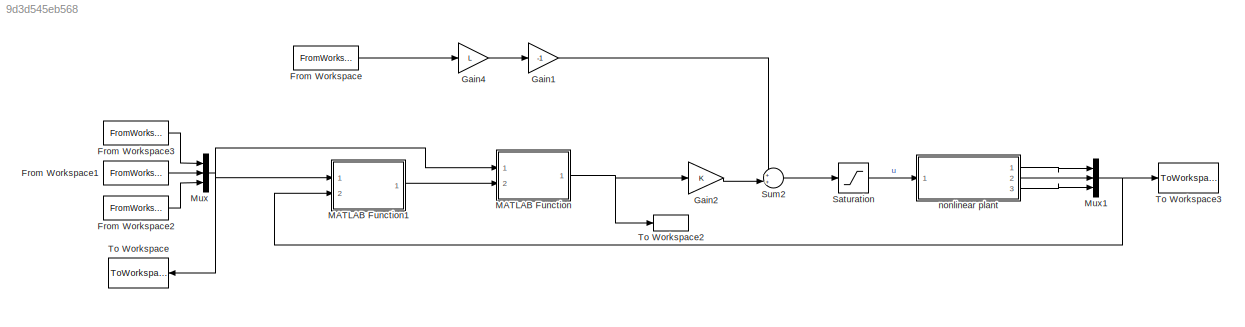
MODEL slx_9d3d545eb568
KIND model
CONFIG AbsTol = auto
CONFIG EnableMultiTasking = off
CONFIG FixedStep = auto
CONFIG MaxStep = auto
CONFIG MinStep = auto
CONFIG RelTol = 1e-9
CONFIG SampleTimeConstraint = Unconstrained
CONFIG Solver = VariableStepAuto
CONFIG SolverName = VariableStepAuto
CONFIG StartTime = 0.0
CONFIG StopTime = sim_time
BLOCK [FromWorkspace] From Workspace
  SampleTime = 0
  VariableName = curv
  ZeroCross = on
BLOCK [FromWorkspace] From Workspace1
  SampleTime = 0
  VariableName = y_r
  ZeroCross = on
BLOCK [FromWorkspace] From Workspace2
  SampleTime = 0
  VariableName = yaw_r
  ZeroCross = on
BLOCK [FromWorkspace] From Workspace3
  SampleTime = 0
  VariableName = x_r
  ZeroCross = on
BLOCK [Gain] Gain1
  Gain = -1
  OutDataTypeStr = Inherit: Inherit via internal rule
  ParamDataTypeStr = Inherit: Inherit via internal rule
  SaturateOnIntegerOverflow = off
BLOCK [Gain] Gain2
  Gain = K
  Multiplication = Matrix(K*u)
  OutDataTypeStr = Inherit: Inherit via internal rule
  ParamDataTypeStr = Inherit: Inherit via internal rule
  SaturateOnIntegerOverflow = off
BLOCK [Gain] Gain4
  Gain = L
  OutDataTypeStr = Inherit: Inherit via internal rule
  ParamDataTypeStr = Inherit: Inherit via internal rule
  SaturateOnIntegerOverflow = off
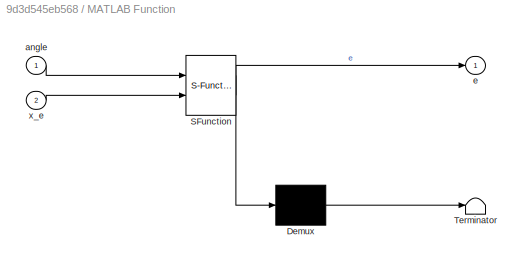
BLOCK [SubSystem] MATLAB Function
  ErrorFcn = Stateflow.Translate.translate
  PermitHierarchicalResolution = ExplicitOnly
  Ports = [2, 1]
  RequestExecContextInheritance = off
  SFBlockType = MATLAB Function
  TreatAsAtomicUnit = on
BLOCK [Demux] MATLAB Function/ Demux 
  Outputs = 1
  Ports = [1, 1]
BLOCK [S-Function] MATLAB Function/ SFunction 
  EnableBusSupport = on
  FunctionName = sf_sfun
  PortCounts = [2 2]
  Ports = [2, 2]
  SFcnIsStateOwnerBlock = off
  SFunctionDeploymentMode = off
  Tag = Stateflow S-Function sp 2
BLOCK [Terminator] MATLAB Function/ Terminator 
BLOCK [Inport] MATLAB Function/angle
  IconDisplay = Port number
BLOCK [Outport] MATLAB Function/e
  IconDisplay = Port number
BLOCK [Inport] MATLAB Function/x_e
  IconDisplay = Port number
  Port = 2
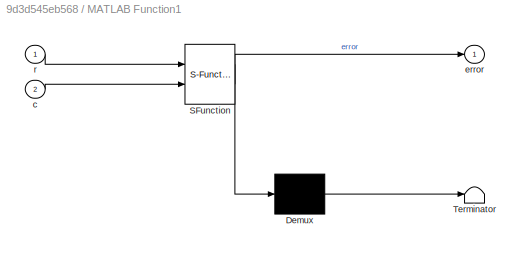
BLOCK [SubSystem] MATLAB Function1
  ErrorFcn = Stateflow.Translate.translate
  PermitHierarchicalResolution = ExplicitOnly
  Ports = [2, 1]
  RequestExecContextInheritance = off
  SFBlockType = MATLAB Function
  TreatAsAtomicUnit = on
BLOCK [Demux] MATLAB Function1/ Demux 
  Outputs = 1
  Ports = [1, 1]
BLOCK [S-Function] MATLAB Function1/ SFunction 
  EnableBusSupport = on
  FunctionName = sf_sfun
  PortCounts = [2 2]
  Ports = [2, 2]
  SFcnIsStateOwnerBlock = off
  SFunctionDeploymentMode = off
  Tag = Stateflow S-Function sp 1
BLOCK [Terminator] MATLAB Function1/ Terminator 
BLOCK [Inport] MATLAB Function1/c
  IconDisplay = Port number
  Port = 2
BLOCK [Outport] MATLAB Function1/error
  IconDisplay = Port number
BLOCK [Inport] MATLAB Function1/r
  IconDisplay = Port number
BLOCK [Mux] Mux
  DisplayOption = bar
  Inputs = 3
  Ports = [3, 1]
BLOCK [Mux] Mux1
  DisplayOption = bar
  Inputs = 3
  Ports = [3, 1]
BLOCK [Saturate] Saturation
  InputPortMap = u0
  LowerLimit = deg2rad(-30)
  Ports = [1, 1]
  UpperLimit = deg2rad(30)
BLOCK [Sum] Sum2
  IconShape = round
  InputSameDT = off
  Inputs = ++|
  OutDataTypeStr = Inherit: Inherit via internal rule
  Ports = [2, 1]
  SaturateOnIntegerOverflow = off
BLOCK [ToWorkspace] To Workspace
  FixptAsFi = on
  MaxDataPoints = inf
  Ports = [1]
  SampleTime = -1
  Save2DSignal = 3-D array (concatenate along third dimension)
  VariableName = des
BLOCK [ToWorkspace] To Workspace2
  FixptAsFi = on
  MaxDataPoints = inf
  Ports = [1]
  SampleTime = -1
  Save2DSignal = 3-D array (concatenate along third dimension)
  VariableName = deviation
BLOCK [ToWorkspace] To Workspace3
  FixptAsFi = on
  MaxDataPoints = inf
  Ports = [1]
  SampleTime = -1
  Save2DSignal = 3-D array (concatenate along third dimension)
  VariableName = odometry
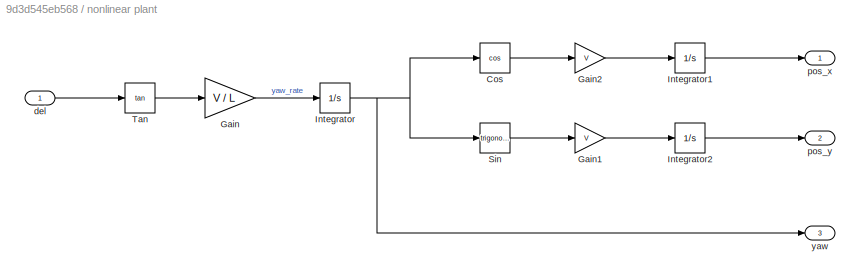
BLOCK [SubSystem] nonlinear plant
  Ports = [1, 3]
  RequestExecContextInheritance = off
BLOCK [Trigonometry] nonlinear plant/Cos
  Operator = cos
  Ports = [1, 1]
BLOCK [Gain] nonlinear plant/Gain
  Gain = V / L
  OutDataTypeStr = Inherit: Inherit via internal rule
  ParamDataTypeStr = Inherit: Inherit via internal rule
  SaturateOnIntegerOverflow = off
BLOCK [Gain] nonlinear plant/Gain1
  Gain = V
  OutDataTypeStr = Inherit: Inherit via internal rule
  ParamDataTypeStr = Inherit: Inherit via internal rule
  SaturateOnIntegerOverflow = off
BLOCK [Gain] nonlinear plant/Gain2
  Gain = V
  OutDataTypeStr = Inherit: Inherit via internal rule
  ParamDataTypeStr = Inherit: Inherit via internal rule
  SaturateOnIntegerOverflow = off
BLOCK [Integrator] nonlinear plant/Integrator
  InitialCondition = ICs(2)
  Ports = [1, 1]
BLOCK [Integrator] nonlinear plant/Integrator1
  InitialCondition = vehicleIC(1)
  Ports = [1, 1]
BLOCK [Integrator] nonlinear plant/Integrator2
  InitialCondition = vehicleIC(2)
  Ports = [1, 1]
BLOCK [Trigonometry] nonlinear plant/Sin
  Ports = [1, 1]
BLOCK [Trigonometry] nonlinear plant/Tan
  Operator = tan
  Ports = [1, 1]
BLOCK [Inport] nonlinear plant/del
  IconDisplay = Port number
BLOCK [Outport] nonlinear plant/pos_x
  IconDisplay = Port number
BLOCK [Outport] nonlinear plant/pos_y
  IconDisplay = Port number
  Port = 2
BLOCK [Outport] nonlinear plant/yaw
  IconDisplay = Port number
  Port = 3
LINE From Workspace1:1 -> Mux:2
LINE From Workspace2:1 -> Mux:3
LINE From Workspace3:1 -> Mux:1
LINE From Workspace:1 -> Gain4:1
LINE Gain1:1 -> Sum2:1
LINE Gain2:1 -> Sum2:2
LINE Gain4:1 -> Gain1:1
LINE MATLAB Function1:1 -> MATLAB Function:2
NET MATLAB Function:1 -> Gain2:1, To Workspace2:1
NET Mux1:1 -> MATLAB Function1:2, To Workspace3:1
NET Mux:1 -> MATLAB Function1:1, MATLAB Function:1, To Workspace:1
LINE Saturation:1 -> nonlinear plant:1
LINE Sum2:1 -> Saturation:1
LINE nonlinear plant/Cos:1 -> nonlinear plant/Gain2:1
LINE nonlinear plant/Gain1:1 -> nonlinear plant/Integrator2:1
LINE nonlinear plant/Gain2:1 -> nonlinear plant/Integrator1:1
LINE nonlinear plant/Gain:1 -> nonlinear plant/Integrator:1
LINE nonlinear plant/Integrator1:1 -> nonlinear plant/pos_x:1
LINE nonlinear plant/Integrator2:1 -> nonlinear plant/pos_y:1
NET nonlinear plant/Integrator:1 -> nonlinear plant/Cos:1, nonlinear plant/Sin:1, nonlinear plant/yaw:1
LINE nonlinear plant/Sin:1 -> nonlinear plant/Gain1:1
LINE nonlinear plant/Tan:1 -> nonlinear plant/Gain:1
LINE nonlinear plant/del:1 -> nonlinear plant/Tan:1
LINE nonlinear plant:1 -> Mux1:1
LINE nonlinear plant:2 -> Mux1:2
LINE nonlinear plant:3 -> Mux1:3
note: NET lines group one-source signal fan-out (src -> all destinations, sorted); 1:1 wires keep LINE
CHART MATLAB Function1 states=1 transitions=1
  STATE_LABEL 'eML_blk_kernel()'
  STATE_LABEL 'SCRIPT:\nfunction error = safeminus(r, c)\n    error = zeros(3, 1);\n    error(1, 1) = r(1) - c(1);\n    error(2, 1) = r(2) - c(2);\n    cross = cos(c(3))*sin(r(3)) - sin(c(3))*cos(r(3));\n    dot   = cos(c(3))*cos(r(3)) + sin(c(3))*sin(r(3));\n    error(3, 1) = atan2(cross, dot);\n\n\n'
CHART MATLAB Function states=1 transitions=1
  STATE_LABEL 'eML_blk_kernel()'
  STATE_LABEL 'SCRIPT:\nfunction e   = DCM(angle, x_e)\n    e = zeros(2, 1);\n    DCM = @(ang) [cos(ang)  sin(ang) 0;\n                  -sin(ang) cos(ang) 0;\n                  0            0     1];\n    E = DCM(angle(3))*x_e;\n    e = E(2:3, 1);\n\n'
